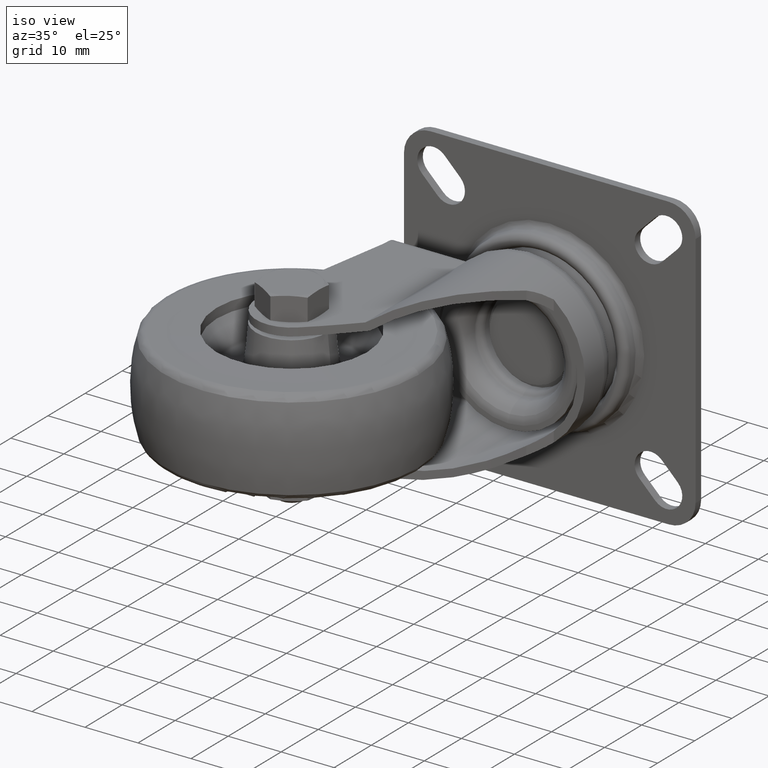
[diagram: clean part render]
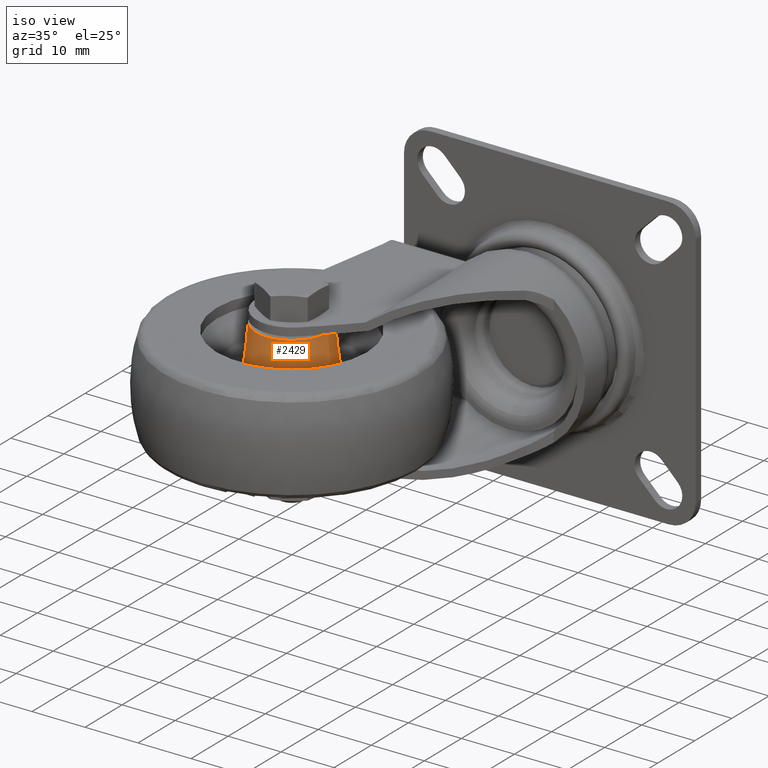
[diagram: same view with one face highlighted and labeled with its STEP entity id]
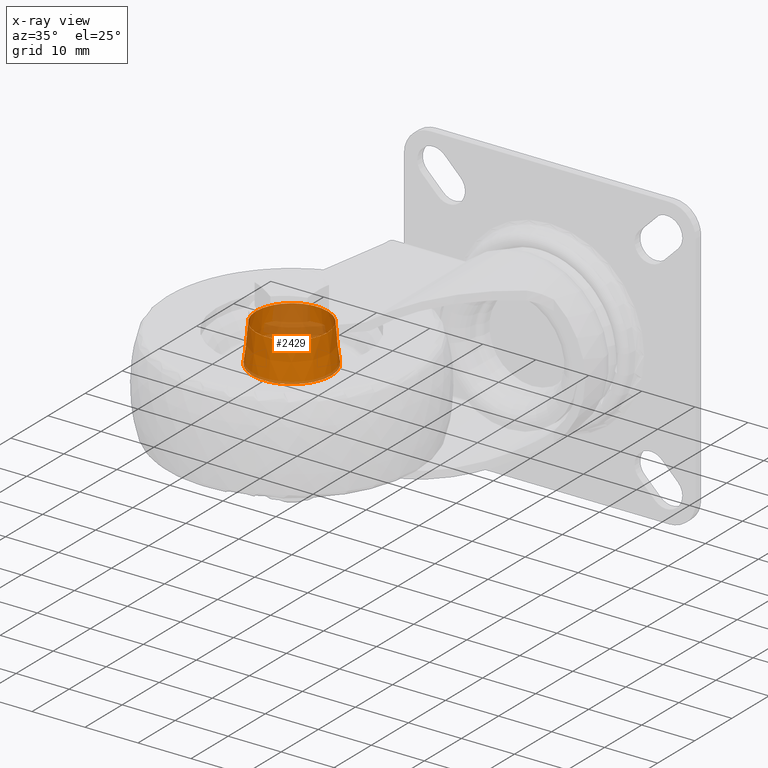
[diagram: x-ray of the same camera — body ghosted, the highlighted face saturated]
A machine part, iso view. The second image highlights one B-rep face of the part: STEP entity #2429.
The next image is the same camera in x-ray: the body ghosted, the highlighted face saturated — about 28% of this face is hidden behind the body in this view.
In plain terms, the highlighted conical surface has half-angle 5.825 deg.
Its self-contained STEP definition (entity closure, byte-faithful):
#301=CONICAL_SURFACE('',#2608,6.77550335570469,5.82478866695398);
#383=FACE_BOUND('',#650,.T.);
#477=FACE_OUTER_BOUND('',#649,.T.);
#649=EDGE_LOOP('',(#1588));
#650=EDGE_LOOP('',(#1589));
#909=CIRCLE('',#2607,6.77550335570469);
#910=CIRCLE('',#2609,7.50505099392195);
#1056=VERTEX_POINT('',#3668);
#1057=VERTEX_POINT('',#3671);
#1279=EDGE_CURVE('',#1056,#1056,#909,.T.);
#1280=EDGE_CURVE('',#1057,#1057,#910,.T.);
#1588=ORIENTED_EDGE('',*,*,#1280,.T.);
#1589=ORIENTED_EDGE('',*,*,#1279,.F.);
#2429=ADVANCED_FACE('',(#477,#383),#301,.T.);
#2607=AXIS2_PLACEMENT_3D('',#3669,#2936,#2937);
#2608=AXIS2_PLACEMENT_3D('',#3670,#2938,#2939);
#2609=AXIS2_PLACEMENT_3D('',#3672,#2940,#2941);
#2936=DIRECTION('center_axis',(0.,0.,1.));
#2937=DIRECTION('ref_axis',(1.,0.,0.));
#2938=DIRECTION('center_axis',(0.,0.,-1.));
#2939=DIRECTION('ref_axis',(-1.,0.,0.));
#2940=DIRECTION('center_axis',(0.,0.,1.));
#2941=DIRECTION('ref_axis',(1.,0.,0.));
#3668=CARTESIAN_POINT('',(6.77550335570469,0.,10.5));
#3669=CARTESIAN_POINT('Origin',(0.,0.,10.5));
#3670=CARTESIAN_POINT('Origin',(0.,0.,10.5));
#3671=CARTESIAN_POINT('',(7.50505099392195,0.,3.34851328326277));
#3672=CARTESIAN_POINT('Origin',(0.,0.,3.34851328326277));